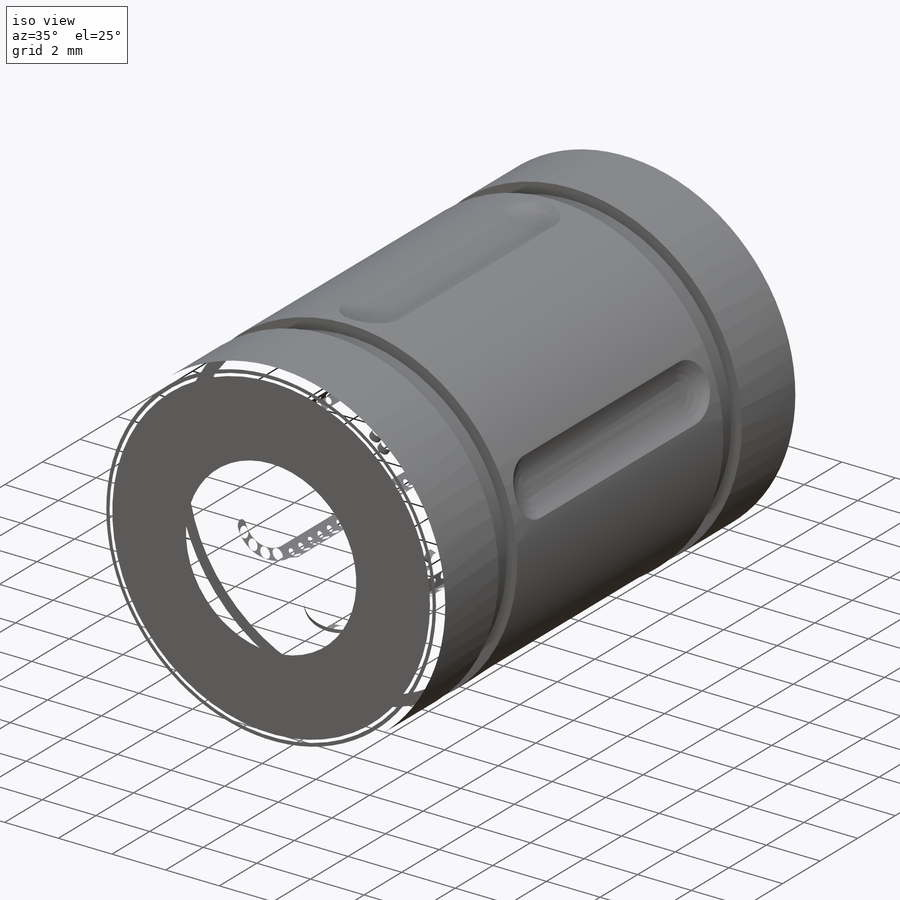
[diagram: iso view]
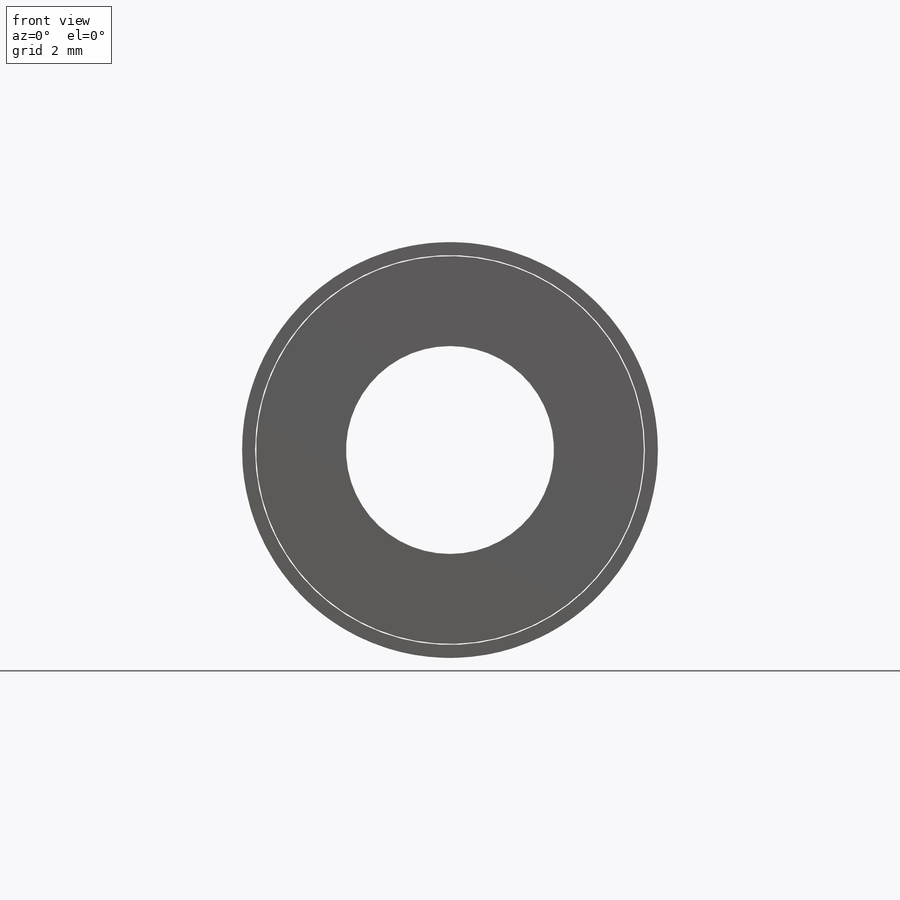
[diagram: front view]
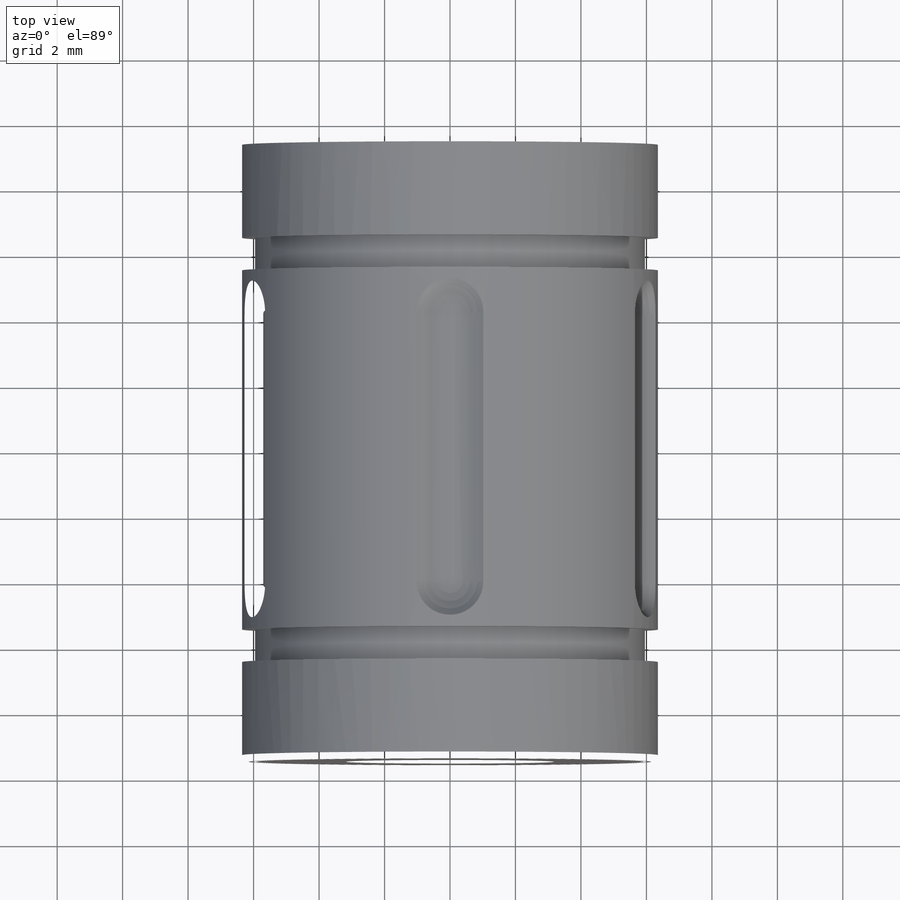
[diagram: top view]
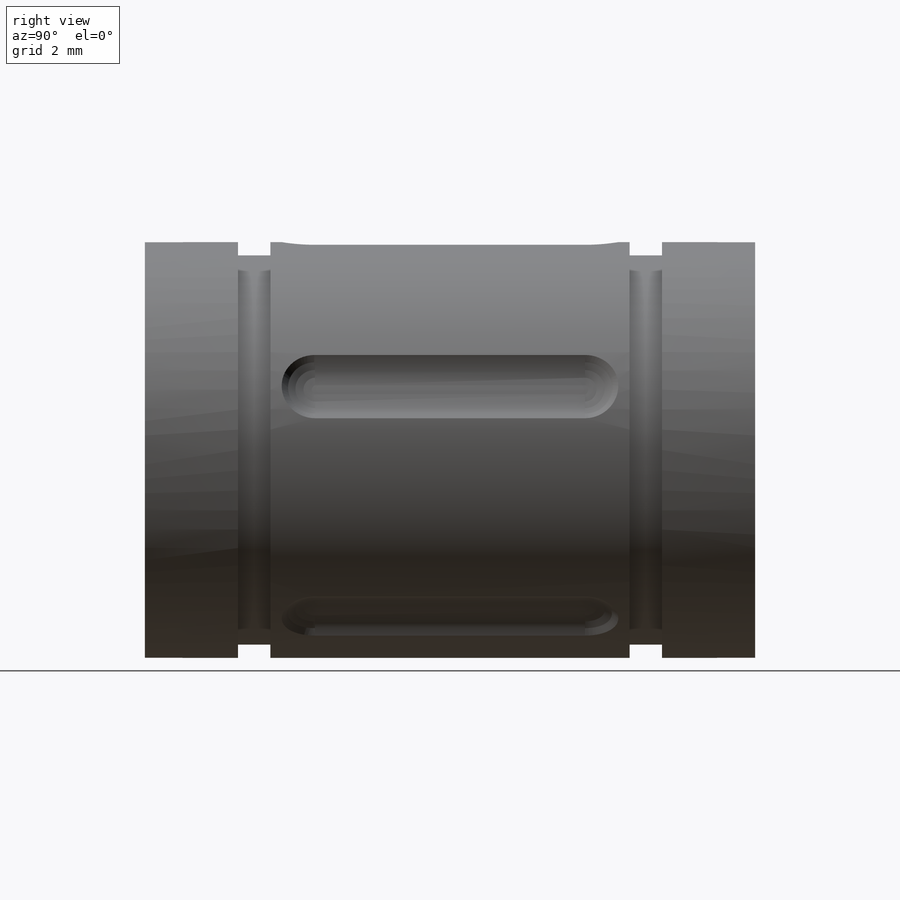
[diagram: right view]
SOLIDWORKS PART (.sldprt)
format: sldprt  version: not decoded by parser v0  size: 2,135,040 bytes
history: native  units: mm
features: sketch x16, extrude x6, cut_extrude x6, fillet x4, pattern_circular x4, cut_revolve x2, mirror x2, material x1, revolve x1, pattern_linear x1 (+14 scaffold rows collapsed)
feature tree (57):
  scaffold x14  (default folders/planes/origin — collapsed)
  material  "Material <not specified>"
  sketch  "Sketch1"  dims[OD =12.7mm]
  extrude  "Extrude1"  Depth=19.05mm MMC B =19.05mm
  sketch  "Sketch2"  dims[MMC C =12.954mm Supplier C2 =0.9906mm Groove Depth =~0.39751mm]
  cut_revolve  "Cut-Revolve1"  Angle=360deg
  sketch  "Sketch4"  dims[D1=12.7mm D2=2.032mm]
  cut_extrude  "Cut-Extrude3"  [1 undecoded]
  fillet  "Fillet2"  Radius=1.27mm
  pattern_circular  "CirPattern1"  Count=5 Angle=360deg
  sketch  "Sketch5"  dims[ID =6.35mm]
  cut_extrude  "Cut-Extrude4"  [1 undecoded]
  sketch  "Sketch6"  dims[c1.D1=0.762mm c1.D2=3.048mm c2.D2=60.0deg]
  cut_revolve  "Cut-Revolve2"  Angle=360deg
  sketch  "Sketch8"  dims[c1.D1=0.3175mm c1.D2=~1.176821mm c2.D2=72.0deg c2.D3=~1.300696mm c3.D3=30.0deg]
  extrude  "Extrude2"  [1 undecoded]
  pattern_circular  "CirPattern2"  Count=5 Angle=360deg
  sketch  "Sketch9"  dims[c1.D1=3.175mm c1.D2=6.35mm c2.D1=~5.673646mm c2.D3=3.175mm]
  extrude  "Extrude3"  [1 undecoded]
  pattern_circular  "CirPattern3"  Count=5 Angle=360deg
  sketch  "Sketch10"  dims[D1=25.4mm]
  cut_extrude  "Cut-Extrude5"  [1 undecoded]
  fillet  "Fillet3"  Radius=0.3175mm
  sketch  "Sketch11"  dims[D1=~0.142875mm D2=~0.142875mm]
  cut_extrude  "Cut-Extrude6"  [1 undecoded]
  sketch  "Sketch12"  dims[D1=~0.03175mm D2=~0.03175mm]
  revolve  "Revolve1"  Angle=360deg
  pattern_linear  "LPattern1"  Count1=10 Count2=10 Spacing1=0.508mm Spacing2=0.508mm
  sketch  "Sketch13"  dims[D1=~0.007938mm]
  extrude  "Extrude4"  [1 undecoded]
  mirror  "Mirror1"
  pattern_circular  "CirPattern4"  Count=5 Angle=360deg
  sketch  "Sketch14"
  cut_extrude  "Cut-Extrude7"  [1 undecoded]
  fillet  "Fillet4"  Radius=0.195239mm
  sketch  "Sketch15"  dims[c1.D1=35.2343mm c1.D2=~34.222247mm c2.D1=~0.32512mm c2.D2=0.1016mm]
  cut_extrude  "Cut-Extrude8"  Depth=0.423333mm
  mirror  "Mirror2"
  fillet  "Fillet5"  Radius=0.2032mm
  sketch  "Sketch16"  dims[c1.Retaining Ring OD =13.97mm c1.D4=~12.288426mm c1.D1=13.97mm c1.D2=~23.844269mm c2.D2=90.0deg]
  extrude  "Extrude5"  Depth=0.889mm Retaining Ring Thickness =0.889mm
  sketch  "Sketch17"
  extrude  "Extrude6"  Depth=0.889mm
  sketch  "Sketch18"
decode coverage: 29 of 42 modeling features carry decoded parameters
note: ~ marks probable driven/reference dimensions
note: 8 parameter values undecoded
summary: no parameter record found for 8 features
note: suppression state not decoded; provenance and decode notes live in map.json
